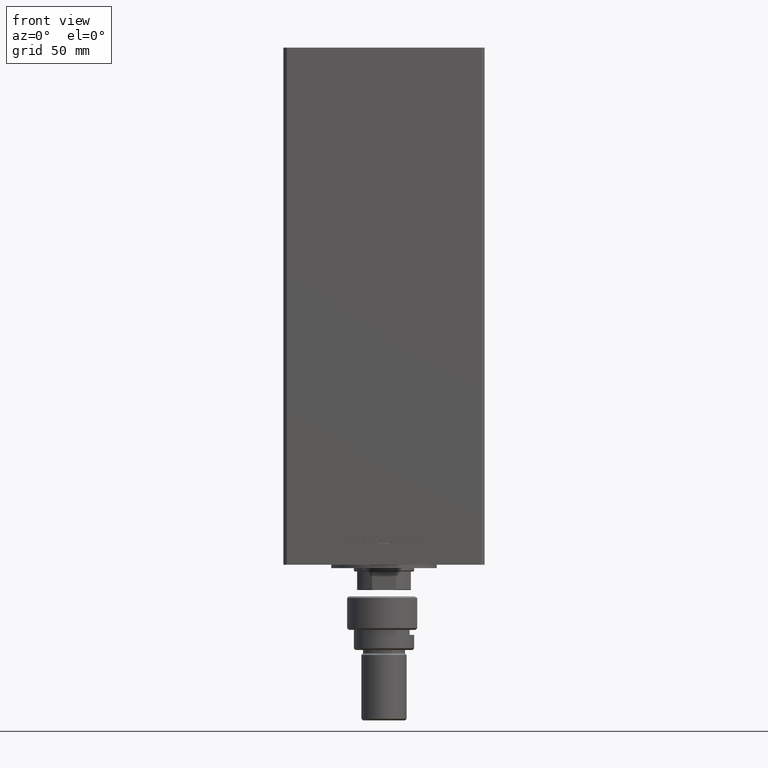
[diagram: clean part render]
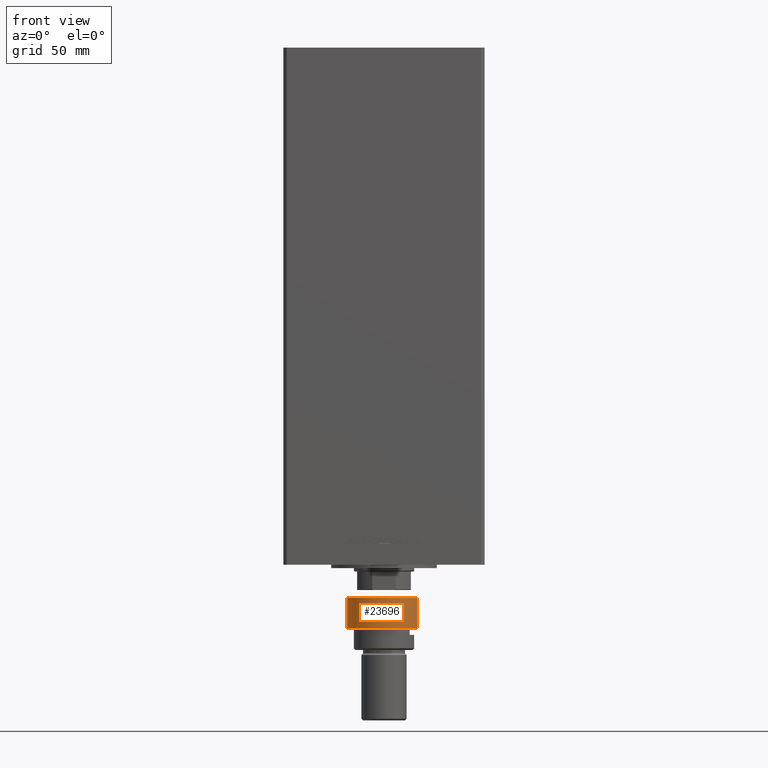
[diagram: same view with one face highlighted and labeled with its STEP entity id]
A machine part, front view. The second image highlights one B-rep face of the part: STEP entity #23696.
In plain terms, the highlighted cylindrical surface (partial cylindrical patch) has radius 22 mm, axis along (0, -0, 1).
Its self-contained STEP definition (entity closure, byte-faithful):
#347 = LINE ( 'NONE', #12732, #41201 ) ;
#560 = EDGE_CURVE ( 'NONE', #10165, #9885, #347, .T. ) ;
#1341 = ORIENTED_EDGE ( 'NONE', *, *, #36540, .F. ) ;
#2110 = CARTESIAN_POINT ( 'NONE',  ( 0.000000000000000000, 0.000000000000000000, 20.00000000000000000 ) ) ;
#5924 = AXIS2_PLACEMENT_3D ( 'NONE', #8527, #32780, #49232 ) ;
#5937 = EDGE_CURVE ( 'NONE', #27788, #10165, #34511, .T. ) ;
#6947 = DIRECTION ( 'NONE',  ( -0.000000000000000000, -0.000000000000000000, -1.000000000000000000 ) ) ;
#7524 = EDGE_CURVE ( 'NONE', #43661, #22255, #52518, .T. ) ;
#7926 = CARTESIAN_POINT ( 'NONE',  ( 0.000000000000000000, 0.000000000000000000, 18.99999999999998579 ) ) ;
#8336 = CARTESIAN_POINT ( 'NONE',  ( 0.000000000000000000, 0.000000000000000000, 1.000000000000000888 ) ) ;
#8527 = CARTESIAN_POINT ( 'NONE',  ( 0.000000000000000000, 0.000000000000000000, 1.000000000000000888 ) ) ;
#8985 = CARTESIAN_POINT ( 'NONE',  ( 22.00000000000000000, 0.000000000000000000, 1.000000000000000888 ) ) ;
#9885 = VERTEX_POINT ( 'NONE', #29931 ) ;
#10165 = VERTEX_POINT ( 'NONE', #18277 ) ;
#12136 = ORIENTED_EDGE ( 'NONE', *, *, #560, .T. ) ;
#12732 = CARTESIAN_POINT ( 'NONE',  ( -19.84313483298442193, -9.500000000000005329, 23.00000000000000000 ) ) ;
#14711 = AXIS2_PLACEMENT_3D ( 'NONE', #7926, #36496, #44844 ) ;
#15035 = CYLINDRICAL_SURFACE ( 'NONE', #49417, 22.00000000000000000 ) ;
#17133 = ORIENTED_EDGE ( 'NONE', *, *, #7524, .T. ) ;
#18277 = CARTESIAN_POINT ( 'NONE',  ( -19.84313483298442193, -9.500000000000005329, 18.99999999999998579 ) ) ;
#22255 = VERTEX_POINT ( 'NONE', #47137 ) ;
#23109 = CIRCLE ( 'NONE', #5924, 22.00000000000000000 ) ;
#23696 = ADVANCED_FACE ( 'NONE', ( #47909 ), #15035, .T. ) ;
#26897 = DIRECTION ( 'NONE',  ( -1.000000000000000000, 0.000000000000000000, 0.000000000000000000 ) ) ;
#27514 = LINE ( 'NONE', #47478, #38570 ) ;
#27788 = VERTEX_POINT ( 'NONE', #45476 ) ;
#29931 = CARTESIAN_POINT ( 'NONE',  ( -19.84313483298442193, -9.500000000000005329, 1.000000000000000888 ) ) ;
#32780 = DIRECTION ( 'NONE',  ( -0.000000000000000000, -0.000000000000000000, 1.000000000000000000 ) ) ;
#33392 = DIRECTION ( 'NONE',  ( -0.000000000000000000, -0.000000000000000000, 1.000000000000000000 ) ) ;
#33622 = EDGE_CURVE ( 'NONE', #9885, #43661, #23109, .T. ) ;
#33925 = DIRECTION ( 'NONE',  ( 1.000000000000000000, 0.000000000000000000, 0.000000000000000000 ) ) ;
#34264 = DIRECTION ( 'NONE',  ( -0.000000000000000000, -0.000000000000000000, -1.000000000000000000 ) ) ;
#34511 = CIRCLE ( 'NONE', #14711, 22.00000000000000000 ) ;
#35062 = DIRECTION ( 'NONE',  ( -0.000000000000000000, -0.000000000000000000, -1.000000000000000000 ) ) ;
#36496 = DIRECTION ( 'NONE',  ( 0.000000000000000000, 0.000000000000000000, -1.000000000000000000 ) ) ;
#36540 = EDGE_CURVE ( 'NONE', #27788, #22255, #27514, .T. ) ;
#38570 = VECTOR ( 'NONE', #35062, 1000.000000000000000 ) ;
#39770 = EDGE_LOOP ( 'NONE', ( #1341, #43384, #12136, #46656, #17133 ) ) ;
#40474 = AXIS2_PLACEMENT_3D ( 'NONE', #8336, #33392, #33925 ) ;
#41201 = VECTOR ( 'NONE', #34264, 1000.000000000000000 ) ;
#43384 = ORIENTED_EDGE ( 'NONE', *, *, #5937, .T. ) ;
#43661 = VERTEX_POINT ( 'NONE', #8985 ) ;
#44844 = DIRECTION ( 'NONE',  ( 1.000000000000000000, 0.000000000000000000, 0.000000000000000000 ) ) ;
#45476 = CARTESIAN_POINT ( 'NONE',  ( -19.84313483298442904, 9.500000000000000000, 18.99999999999998579 ) ) ;
#46656 = ORIENTED_EDGE ( 'NONE', *, *, #33622, .T. ) ;
#47137 = CARTESIAN_POINT ( 'NONE',  ( -19.84313483298442904, 9.500000000000000000, 1.000000000000000888 ) ) ;
#47478 = CARTESIAN_POINT ( 'NONE',  ( -19.84313483298442904, 9.500000000000000000, 23.00000000000000000 ) ) ;
#47909 = FACE_OUTER_BOUND ( 'NONE', #39770, .T. ) ;
#49232 = DIRECTION ( 'NONE',  ( 1.000000000000000000, 0.000000000000000000, 0.000000000000000000 ) ) ;
#49417 = AXIS2_PLACEMENT_3D ( 'NONE', #2110, #6947, #26897 ) ;
#52518 = CIRCLE ( 'NONE', #40474, 22.00000000000000000 ) ;